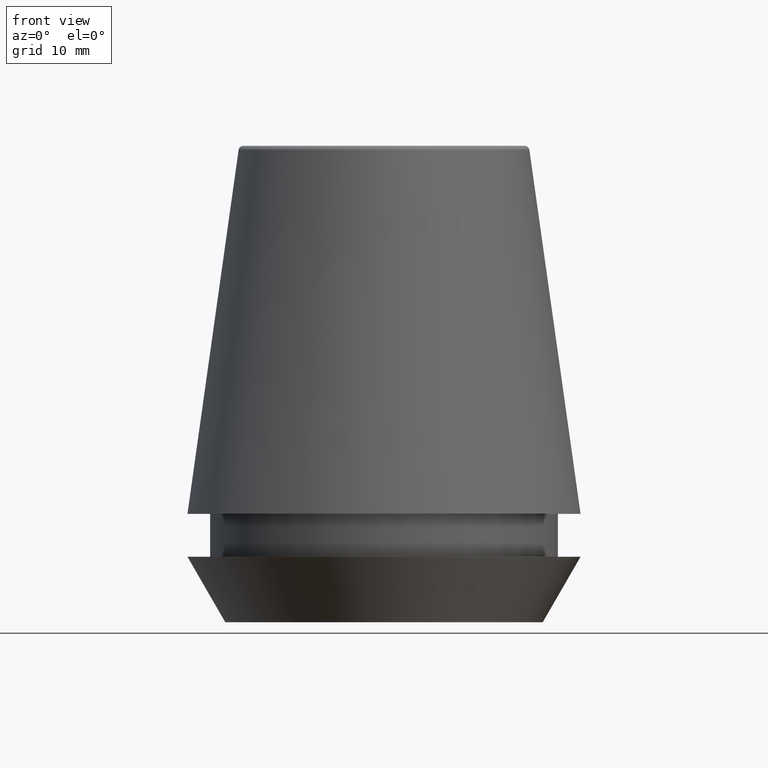
[diagram: clean part render]
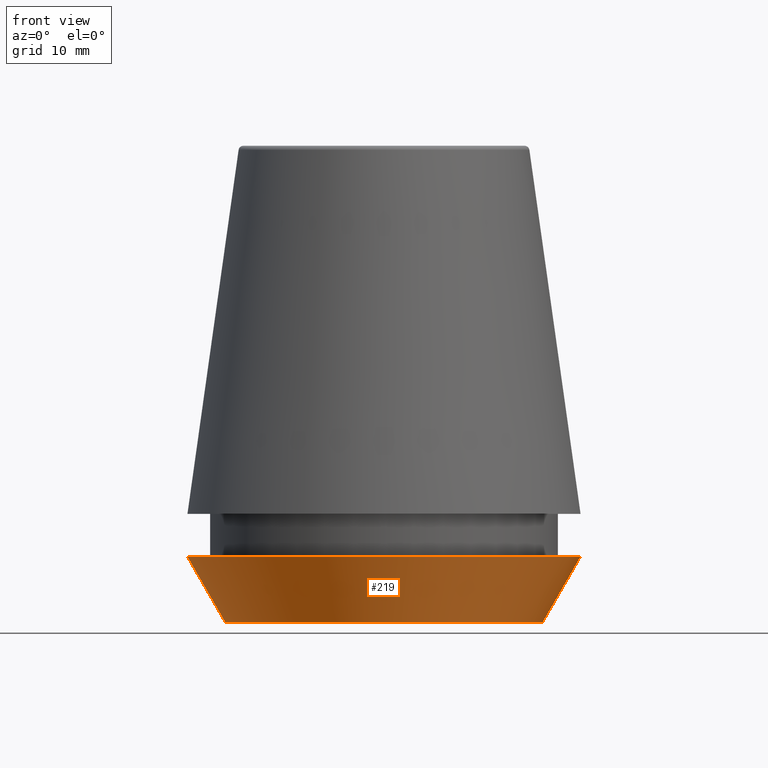
[diagram: same view with one face highlighted and labeled with its STEP entity id]
A machine part, front view. The second image highlights one B-rep face of the part: STEP entity #219.
In plain terms, the highlighted conical surface has half-angle 30 deg.
Its self-contained STEP definition (entity closure, byte-faithful):
#2 = VERTEX_POINT ( 'NONE', #189 ) ;
#5 = AXIS2_PLACEMENT_3D ( 'NONE', #28, #350, #193 ) ;
#12 = CARTESIAN_POINT ( 'NONE',  ( 13.32457351945710200, 0.0000000000000000000, 0.0000000000000000000 ) ) ;
#28 = CARTESIAN_POINT ( 'NONE',  ( 0.0000000000000000000, 0.0000000000000000000, 0.0000000000000000000 ) ) ;
#83 = CIRCLE ( 'NONE', #5, 13.32457351945710200 ) ;
#89 = CARTESIAN_POINT ( 'NONE',  ( 0.0000000000000000000, 0.0000000000000000000, 0.0000000000000000000 ) ) ;
#90 = DIRECTION ( 'NONE',  ( 0.4999999999999947300, 0.0000000000000000000, 0.8660254037844418200 ) ) ;
#92 = CARTESIAN_POINT ( 'NONE',  ( 13.32457351945710200, 0.0000000000000000000, 0.0000000000000000000 ) ) ;
#95 = LINE ( 'NONE', #144, #378 ) ;
#102 = FACE_OUTER_BOUND ( 'NONE', #328, .T. ) ;
#105 = DIRECTION ( 'NONE',  ( -0.0000000000000000000, -0.0000000000000000000, 1.000000000000000000 ) ) ;
#106 = VERTEX_POINT ( 'NONE', #385 ) ;
#116 = DIRECTION ( 'NONE',  ( -0.4999999999999947300, 6.123233995736700700E-017, 0.8660254037844418200 ) ) ;
#129 = EDGE_CURVE ( 'NONE', #106, #2, #222, .T. ) ;
#144 = CARTESIAN_POINT ( 'NONE',  ( -13.32457351945710200, 1.631789631060672300E-015, 0.0000000000000000000 ) ) ;
#146 = CARTESIAN_POINT ( 'NONE',  ( 0.0000000000000000000, 0.0000000000000000000, 5.500000000000005300 ) ) ;
#160 = ORIENTED_EDGE ( 'NONE', *, *, #129, .F. ) ;
#177 = EDGE_CURVE ( 'NONE', #303, #106, #95, .T. ) ;
#185 = VECTOR ( 'NONE', #90, 999.9999999999998900 ) ;
#189 = CARTESIAN_POINT ( 'NONE',  ( 16.50000000000000000, 0.0000000000000000000, 5.500000000000005300 ) ) ;
#193 = DIRECTION ( 'NONE',  ( 1.000000000000000000, 0.0000000000000000000, 0.0000000000000000000 ) ) ;
#211 = DIRECTION ( 'NONE',  ( 1.000000000000000000, 0.0000000000000000000, 0.0000000000000000000 ) ) ;
#219 = ADVANCED_FACE ( 'NONE', ( #102 ), #333, .T. ) ;
#221 = AXIS2_PLACEMENT_3D ( 'NONE', #146, #105, #211 ) ;
#222 = CIRCLE ( 'NONE', #221, 16.50000000000000000 ) ;
#247 = ORIENTED_EDGE ( 'NONE', *, *, #263, .T. ) ;
#259 = CARTESIAN_POINT ( 'NONE',  ( -13.32457351945710200, 1.826228424826902600E-015, 0.0000000000000000000 ) ) ;
#263 = EDGE_CURVE ( 'NONE', #303, #379, #83, .T. ) ;
#269 = ORIENTED_EDGE ( 'NONE', *, *, #177, .F. ) ;
#272 = DIRECTION ( 'NONE',  ( -0.0000000000000000000, -0.0000000000000000000, 1.000000000000000000 ) ) ;
#303 = VERTEX_POINT ( 'NONE', #259 ) ;
#305 = DIRECTION ( 'NONE',  ( 1.000000000000000000, 0.0000000000000000000, 0.0000000000000000000 ) ) ;
#328 = EDGE_LOOP ( 'NONE', ( #269, #247, #374, #160 ) ) ;
#333 = CONICAL_SURFACE ( 'NONE', #345, 13.32457351945710200, 0.5235987755982927100 ) ;
#345 = AXIS2_PLACEMENT_3D ( 'NONE', #89, #272, #305 ) ;
#350 = DIRECTION ( 'NONE',  ( -0.0000000000000000000, -0.0000000000000000000, 1.000000000000000000 ) ) ;
#363 = EDGE_CURVE ( 'NONE', #379, #2, #380, .T. ) ;
#374 = ORIENTED_EDGE ( 'NONE', *, *, #363, .T. ) ;
#378 = VECTOR ( 'NONE', #116, 999.9999999999998900 ) ;
#379 = VERTEX_POINT ( 'NONE', #92 ) ;
#380 = LINE ( 'NONE', #12, #185 ) ;
#385 = CARTESIAN_POINT ( 'NONE',  ( -16.50000000000000000, 2.020667218593133100E-015, 5.500000000000005300 ) ) ;